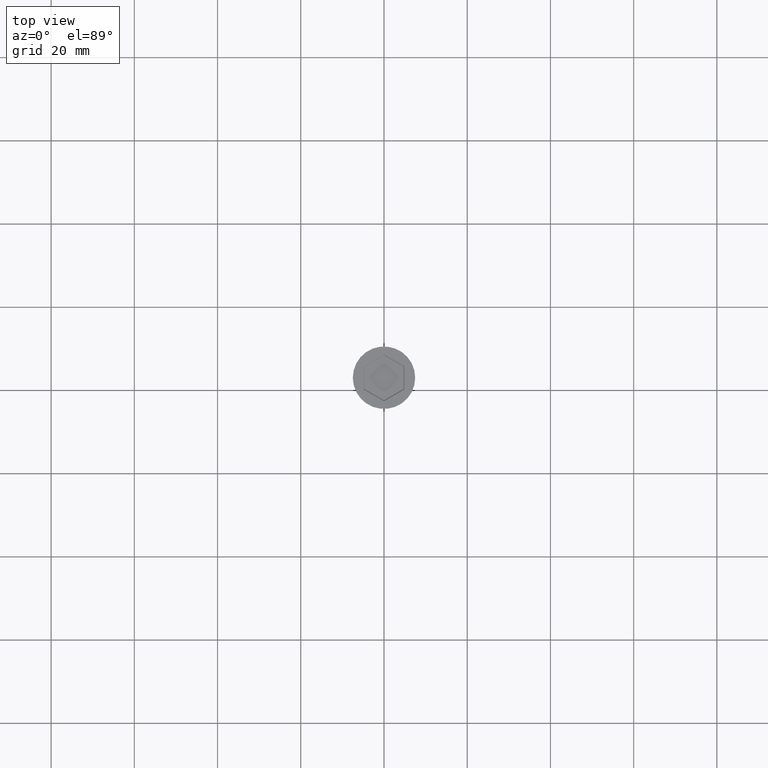
[diagram: clean part render]
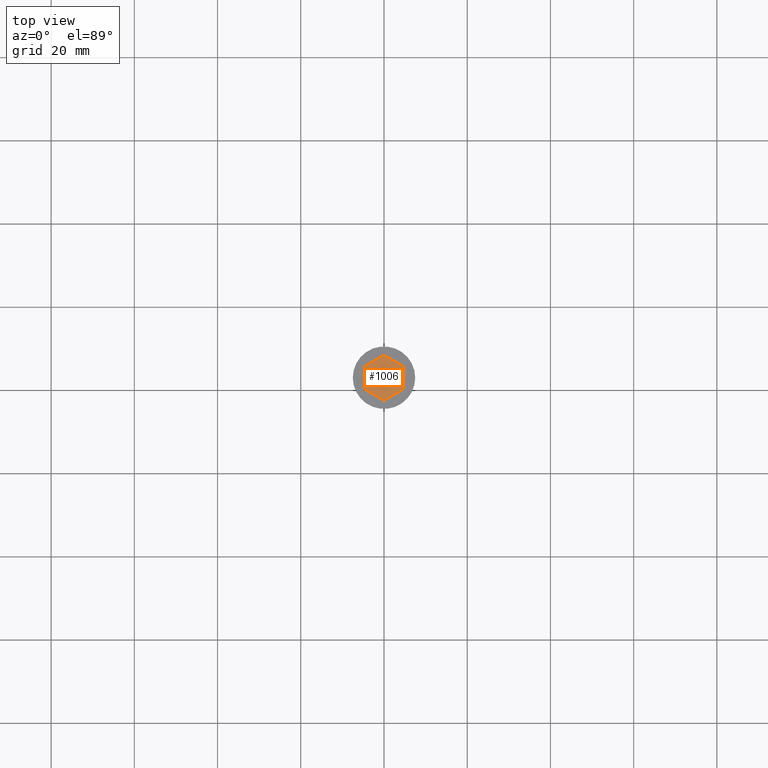
[diagram: same view with one face highlighted and labeled with its STEP entity id]
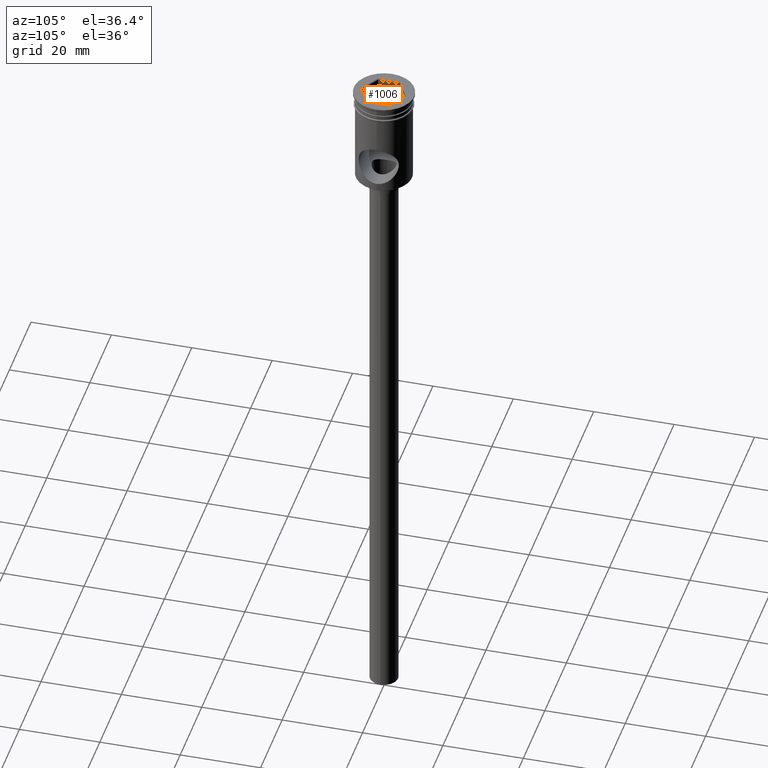
[diagram: same view with one face highlighted and labeled with its STEP entity id]
A machine part, top view. The second image highlights one B-rep face of the part: STEP entity #1006.
A second angle (auxiliary view) of the same face is appended — the face is thin or edge-on in the first view.
In plain terms, the highlighted planar face has unit normal (-0, 0, 1).
Its self-contained STEP definition (entity closure, byte-faithful):
#34 = EDGE_CURVE ( 'NONE', #153, #1079, #59, .T. ) ;
#44 = EDGE_CURVE ( 'NONE', #50, #1455, #894, .T. ) ;
#50 = VERTEX_POINT ( 'NONE', #1203 ) ;
#55 = LINE ( 'NONE', #117, #171 ) ;
#58 = DIRECTION ( 'NONE',  ( 0.8660254037844385966, 0.4999999999999998890, 0.000000000000000000 ) ) ;
#59 = LINE ( 'NONE', #1111, #771 ) ;
#81 = EDGE_LOOP ( 'NONE', ( #470, #416, #386, #1248, #403, #679 ) ) ;
#87 = EDGE_CURVE ( 'NONE', #730, #760, #476, .T. ) ;
#117 = CARTESIAN_POINT ( 'NONE',  ( -4.699999999999999289, 2.713546265191240536, -2.000000000000000000 ) ) ;
#125 = VECTOR ( 'NONE', #217, 1000.000000000000227 ) ;
#153 = VERTEX_POINT ( 'NONE', #732 ) ;
#171 = VECTOR ( 'NONE', #1025, 1000.000000000000000 ) ;
#216 = FACE_OUTER_BOUND ( 'NONE', #81, .T. ) ;
#217 = DIRECTION ( 'NONE',  ( -0.8660254037844385966, 0.5000000000000000000, 0.000000000000000000 ) ) ;
#317 = PLANE ( 'NONE',  #914 ) ;
#327 = VECTOR ( 'NONE', #517, 1000.000000000000000 ) ;
#386 = ORIENTED_EDGE ( 'NONE', *, *, #567, .T. ) ;
#403 = ORIENTED_EDGE ( 'NONE', *, *, #870, .T. ) ;
#416 = ORIENTED_EDGE ( 'NONE', *, *, #87, .T. ) ;
#470 = ORIENTED_EDGE ( 'NONE', *, *, #971, .T. ) ;
#476 = LINE ( 'NONE', #833, #1191 ) ;
#505 = CARTESIAN_POINT ( 'NONE',  ( 4.699999999999999289, 2.713546265191240092, -2.000000000000000000 ) ) ;
#517 = DIRECTION ( 'NONE',  ( 0.8660254037844385966, -0.5000000000000001110, 0.000000000000000000 ) ) ;
#567 = EDGE_CURVE ( 'NONE', #760, #50, #55, .T. ) ;
#679 = ORIENTED_EDGE ( 'NONE', *, *, #34, .T. ) ;
#730 = VERTEX_POINT ( 'NONE', #765 ) ;
#732 = CARTESIAN_POINT ( 'NONE',  ( 4.699999999999998401, -2.713546265191241869, -2.000000000000000000 ) ) ;
#742 = LINE ( 'NONE', #1427, #837 ) ;
#753 = CARTESIAN_POINT ( 'NONE',  ( -4.699999999999999289, -2.713546265191241424, -2.000000000000000000 ) ) ;
#760 = VERTEX_POINT ( 'NONE', #1454 ) ;
#765 = CARTESIAN_POINT ( 'NONE',  ( 0.000000000000000000, 5.427092530382481073, -2.000000000000000000 ) ) ;
#771 = VECTOR ( 'NONE', #1464, 1000.000000000000000 ) ;
#773 = CARTESIAN_POINT ( 'NONE',  ( -8.673617379884035472E-16, -5.427092530382482849, -2.000000000000000000 ) ) ;
#833 = CARTESIAN_POINT ( 'NONE',  ( 0.000000000000000000, 5.427092530382481073, -2.000000000000000000 ) ) ;
#837 = VECTOR ( 'NONE', #58, 1000.000000000000227 ) ;
#870 = EDGE_CURVE ( 'NONE', #1455, #153, #742, .T. ) ;
#894 = LINE ( 'NONE', #753, #327 ) ;
#914 = AXIS2_PLACEMENT_3D ( 'NONE', #1476, #1436, #1063 ) ;
#971 = EDGE_CURVE ( 'NONE', #1079, #730, #1218, .T. ) ;
#1006 = ADVANCED_FACE ( 'NONE', ( #216 ), #317, .T. ) ;
#1025 = DIRECTION ( 'NONE',  ( 0.000000000000000000, -1.000000000000000000, 0.000000000000000000 ) ) ;
#1063 = DIRECTION ( 'NONE',  ( 1.000000000000000000, 0.000000000000000000, 0.000000000000000000 ) ) ;
#1073 = DIRECTION ( 'NONE',  ( -0.8660254037844385966, -0.4999999999999998890, 0.000000000000000000 ) ) ;
#1079 = VERTEX_POINT ( 'NONE', #505 ) ;
#1111 = CARTESIAN_POINT ( 'NONE',  ( 4.699999999999998401, -2.713546265191241869, -2.000000000000000000 ) ) ;
#1191 = VECTOR ( 'NONE', #1073, 1000.000000000000227 ) ;
#1203 = CARTESIAN_POINT ( 'NONE',  ( -4.699999999999999289, -2.713546265191241424, -2.000000000000000000 ) ) ;
#1218 = LINE ( 'NONE', #1233, #125 ) ;
#1233 = CARTESIAN_POINT ( 'NONE',  ( 4.699999999999999289, 2.713546265191240092, -2.000000000000000000 ) ) ;
#1248 = ORIENTED_EDGE ( 'NONE', *, *, #44, .T. ) ;
#1427 = CARTESIAN_POINT ( 'NONE',  ( -8.673617379884035472E-16, -5.427092530382482849, -2.000000000000000000 ) ) ;
#1436 = DIRECTION ( 'NONE',  ( -0.000000000000000000, 0.000000000000000000, 1.000000000000000000 ) ) ;
#1454 = CARTESIAN_POINT ( 'NONE',  ( -4.699999999999999289, 2.713546265191240536, -2.000000000000000000 ) ) ;
#1455 = VERTEX_POINT ( 'NONE', #773 ) ;
#1464 = DIRECTION ( 'NONE',  ( 1.598207019933148115E-16, 1.000000000000000000, 0.000000000000000000 ) ) ;
#1476 = CARTESIAN_POINT ( 'NONE',  ( 0.000000000000000000, 0.000000000000000000, -2.000000000000000000 ) ) ;